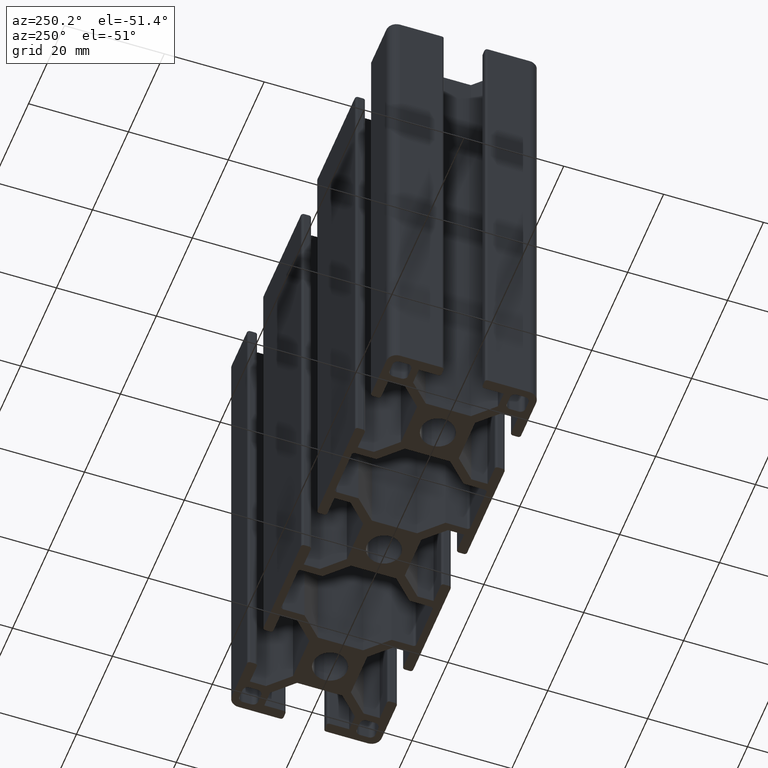
[diagram: clean part render]
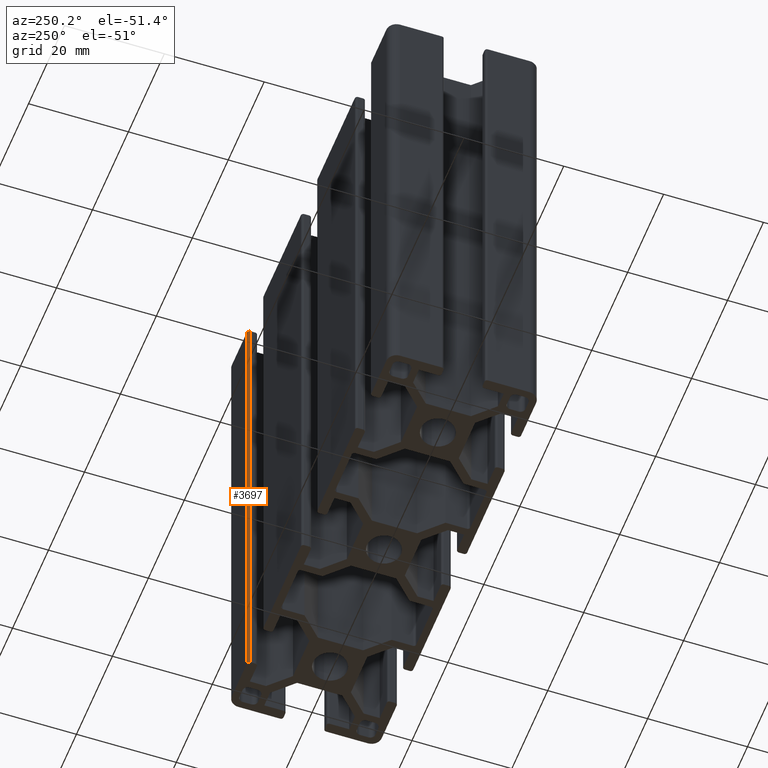
[diagram: same view with one face highlighted and labeled with its STEP entity id]
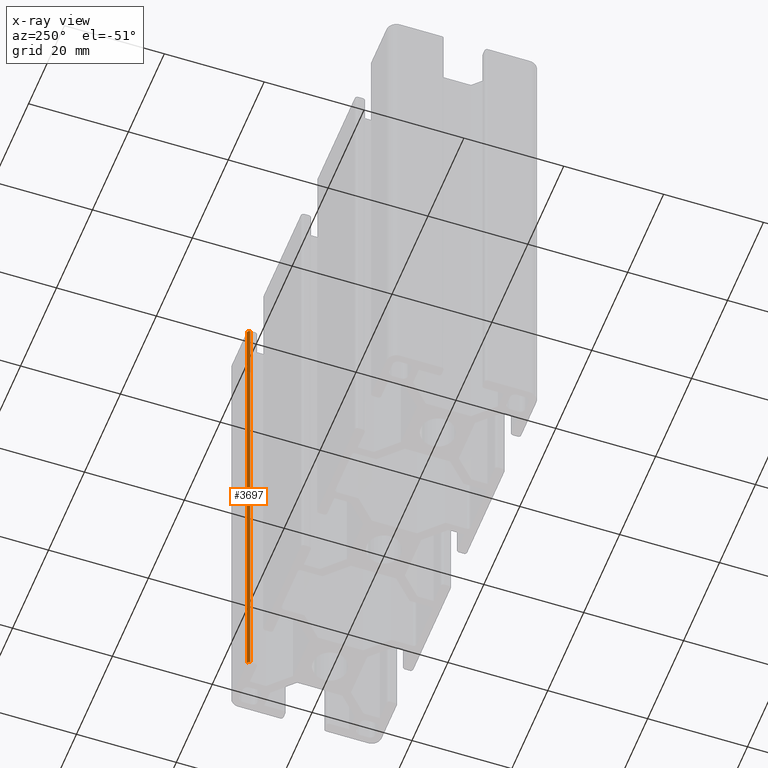
[diagram: x-ray of the same camera — body ghosted, the highlighted face saturated]
A machine part, auxiliary view. The second image highlights one B-rep face of the part: STEP entity #3697.
The next image is the same camera in x-ray: the body ghosted, the highlighted face saturated — about 0% of this face is hidden behind the body in this view.
In plain terms, the highlighted cylindrical surface (edge-blend (fillet) strip) has radius 0.5 mm, axis along (0, 0, 1).
Its self-contained STEP definition (entity closure, byte-faithful):
#54=CIRCLE('',#3907,0.5);
#55=CIRCLE('',#3908,0.5);
#171=CYLINDRICAL_SURFACE('',#3906,0.5);
#260=FACE_OUTER_BOUND('',#449,.T.);
#449=EDGE_LOOP('',(#2560,#2561,#2562,#2563));
#711=LINE('',#5447,#1143);
#713=LINE('',#5453,#1145);
#1143=VECTOR('',#4363,100.);
#1145=VECTOR('',#4369,100.);
#1560=VERTEX_POINT('',#5444);
#1561=VERTEX_POINT('',#5446);
#1562=VERTEX_POINT('',#5450);
#1563=VERTEX_POINT('',#5452);
#1967=EDGE_CURVE('',#1561,#1560,#711,.T.);
#1969=EDGE_CURVE('',#1562,#1560,#54,.T.);
#1970=EDGE_CURVE('',#1562,#1563,#713,.T.);
#1971=EDGE_CURVE('',#1561,#1563,#55,.T.);
#2560=ORIENTED_EDGE('',*,*,#1969,.F.);
#2561=ORIENTED_EDGE('',*,*,#1970,.T.);
#2562=ORIENTED_EDGE('',*,*,#1971,.F.);
#2563=ORIENTED_EDGE('',*,*,#1967,.T.);
#3697=ADVANCED_FACE('',(#260),#171,.T.);
#3906=AXIS2_PLACEMENT_3D('',#5449,#4365,#4366);
#3907=AXIS2_PLACEMENT_3D('',#5451,#4367,#4368);
#3908=AXIS2_PLACEMENT_3D('',#5454,#4370,#4371);
#4363=DIRECTION('',(0.,0.,1.));
#4365=DIRECTION('center_axis',(0.,0.,1.));
#4366=DIRECTION('ref_axis',(1.77635683940024E-14,-1.,0.));
#4367=DIRECTION('center_axis',(0.,0.,1.));
#4368=DIRECTION('ref_axis',(1.77635683940024E-14,-1.,0.));
#4369=DIRECTION('',(0.,0.,-1.));
#4370=DIRECTION('center_axis',(0.,0.,-1.));
#4371=DIRECTION('ref_axis',(1.77635683940024E-14,-1.,0.));
#5444=CARTESIAN_POINT('',(34.1,14.5,100.));
#5446=CARTESIAN_POINT('',(34.1,14.5,0.));
#5447=CARTESIAN_POINT('',(34.1,14.5,0.));
#5449=CARTESIAN_POINT('Origin',(34.6,14.5,0.));
#5450=CARTESIAN_POINT('',(34.5999999415028,15.0000060285477,100.));
#5451=CARTESIAN_POINT('Origin',(34.6,14.5,100.));
#5452=CARTESIAN_POINT('',(34.5999999609999,15.0000060287369,0.));
#5453=CARTESIAN_POINT('',(34.5999999609995,15.0000060288,0.));
#5454=CARTESIAN_POINT('Origin',(34.6,14.5,0.));